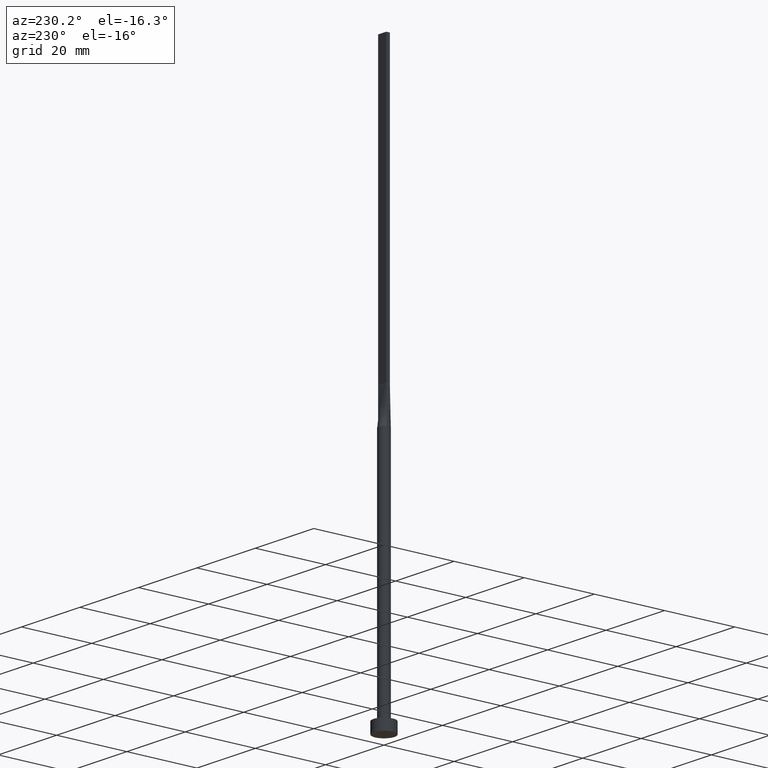
[diagram: clean part render]
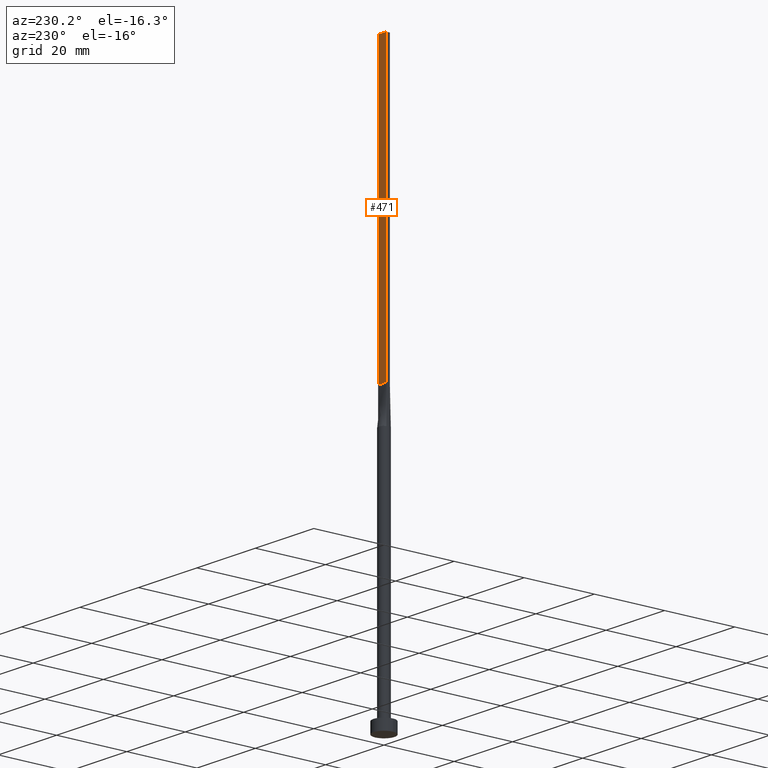
[diagram: same view with one face highlighted and labeled with its STEP entity id]
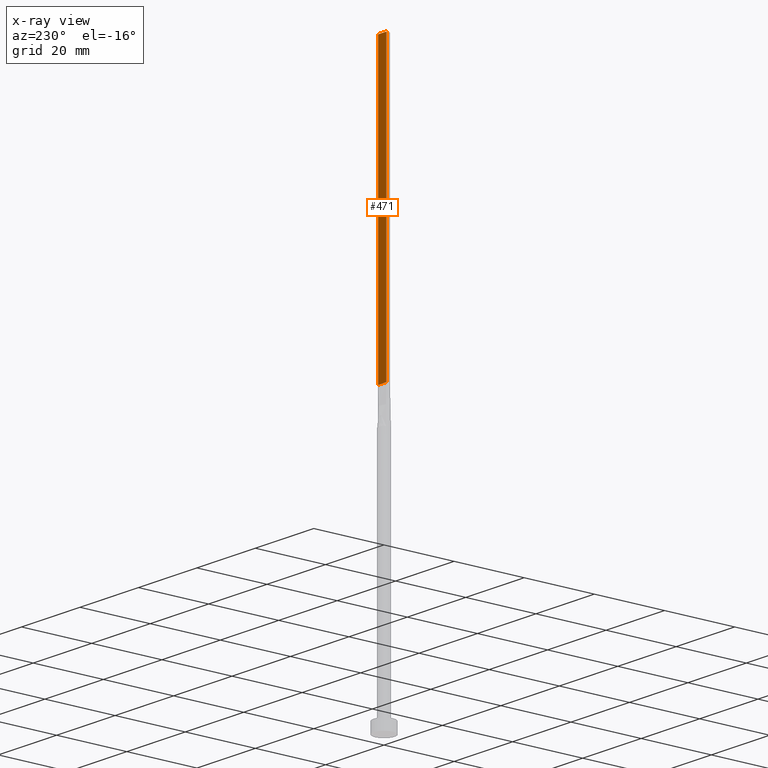
[diagram: x-ray of the same camera — body ghosted, the highlighted face saturated]
A machine part, auxiliary view. The second image highlights one B-rep face of the part: STEP entity #471.
The next image is the same camera in x-ray: the body ghosted, the highlighted face saturated — about 0% of this face is hidden behind the body in this view.
In plain terms, the highlighted planar face has unit normal (0, -1, 0).
Its self-contained STEP definition (entity closure, byte-faithful):
#15 = CARTESIAN_POINT ( 'NONE',  ( 1.399999999999999689, 0.5000000000000002220, 160.0000000000000000 ) ) ;
#33 = PLANE ( 'NONE',  #90 ) ;
#50 = EDGE_CURVE ( 'NONE', #323, #251, #184, .T. ) ;
#55 = ORIENTED_EDGE ( 'NONE', *, *, #523, .F. ) ;
#87 = CARTESIAN_POINT ( 'NONE',  ( -1.399999999999999689, 0.5000000000000002220, 80.00000000000000000 ) ) ;
#90 = AXIS2_PLACEMENT_3D ( 'NONE', #399, #396, #570 ) ;
#126 = VECTOR ( 'NONE', #304, 1000.000000000000000 ) ;
#129 = CARTESIAN_POINT ( 'NONE',  ( 1.399999999999999689, 0.5000000000000002220, 160.0000000000000000 ) ) ;
#137 = ORIENTED_EDGE ( 'NONE', *, *, #50, .T. ) ;
#140 = EDGE_CURVE ( 'NONE', #497, #251, #204, .T. ) ;
#160 = DIRECTION ( 'NONE',  ( -1.000000000000000000, 0.000000000000000000, 0.000000000000000000 ) ) ;
#174 = LINE ( 'NONE', #129, #126 ) ;
#184 = LINE ( 'NONE', #87, #576 ) ;
#199 = ORIENTED_EDGE ( 'NONE', *, *, #140, .F. ) ;
#204 = LINE ( 'NONE', #240, #544 ) ;
#213 = FACE_OUTER_BOUND ( 'NONE', #507, .T. ) ;
#235 = CARTESIAN_POINT ( 'NONE',  ( 1.399999999999999689, 0.5000000000000002220, 80.00000000000000000 ) ) ;
#240 = CARTESIAN_POINT ( 'NONE',  ( -1.399999999999999689, 0.5000000000000002220, 160.0000000000000000 ) ) ;
#251 = VERTEX_POINT ( 'NONE', #372 ) ;
#267 = CARTESIAN_POINT ( 'NONE',  ( -1.399999999999999689, 0.5000000000000002220, 160.0000000000000000 ) ) ;
#304 = DIRECTION ( 'NONE',  ( -0.000000000000000000, -0.000000000000000000, -1.000000000000000000 ) ) ;
#321 = CARTESIAN_POINT ( 'NONE',  ( 1.399999999999999689, 0.5000000000000002220, 160.0000000000000000 ) ) ;
#323 = VERTEX_POINT ( 'NONE', #235 ) ;
#352 = VERTEX_POINT ( 'NONE', #321 ) ;
#372 = CARTESIAN_POINT ( 'NONE',  ( -1.399999999999999689, 0.5000000000000002220, 80.00000000000000000 ) ) ;
#396 = DIRECTION ( 'NONE',  ( 0.000000000000000000, -1.000000000000000000, 0.000000000000000000 ) ) ;
#399 = CARTESIAN_POINT ( 'NONE',  ( 1.399999999999999689, 0.5000000000000002220, 160.0000000000000000 ) ) ;
#426 = LINE ( 'NONE', #15, #526 ) ;
#464 = EDGE_CURVE ( 'NONE', #352, #323, #174, .T. ) ;
#471 = ADVANCED_FACE ( 'NONE', ( #213 ), #33, .F. ) ;
#497 = VERTEX_POINT ( 'NONE', #267 ) ;
#507 = EDGE_LOOP ( 'NONE', ( #137, #199, #55, #551 ) ) ;
#517 = DIRECTION ( 'NONE',  ( -0.000000000000000000, -0.000000000000000000, -1.000000000000000000 ) ) ;
#523 = EDGE_CURVE ( 'NONE', #352, #497, #426, .T. ) ;
#526 = VECTOR ( 'NONE', #160, 1000.000000000000000 ) ;
#544 = VECTOR ( 'NONE', #517, 1000.000000000000000 ) ;
#551 = ORIENTED_EDGE ( 'NONE', *, *, #464, .T. ) ;
#562 = DIRECTION ( 'NONE',  ( -1.000000000000000000, -0.000000000000000000, -0.000000000000000000 ) ) ;
#570 = DIRECTION ( 'NONE',  ( 0.000000000000000000, -0.000000000000000000, -1.000000000000000000 ) ) ;
#576 = VECTOR ( 'NONE', #562, 1000.000000000000000 ) ;